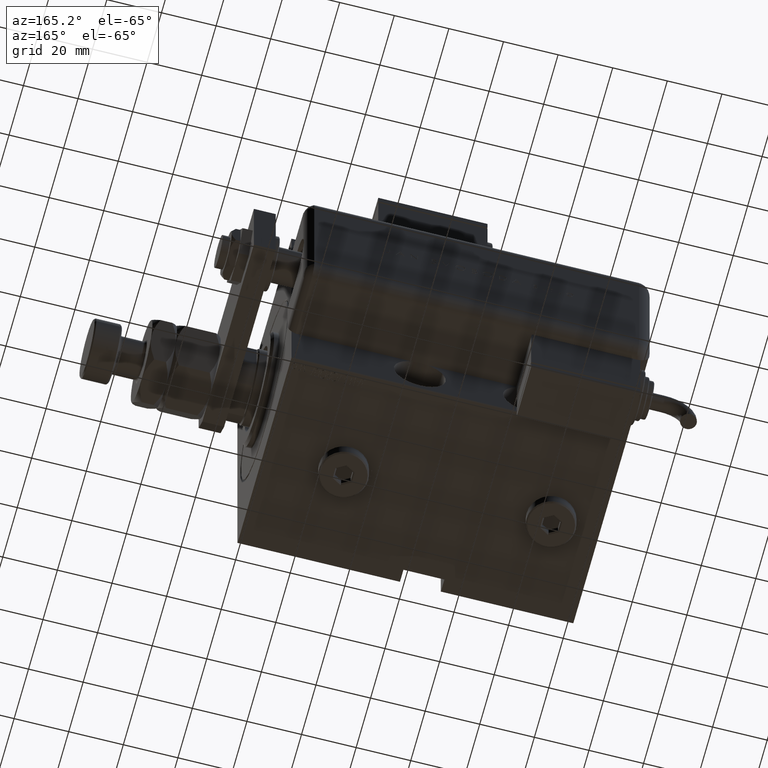
[diagram: clean part render]
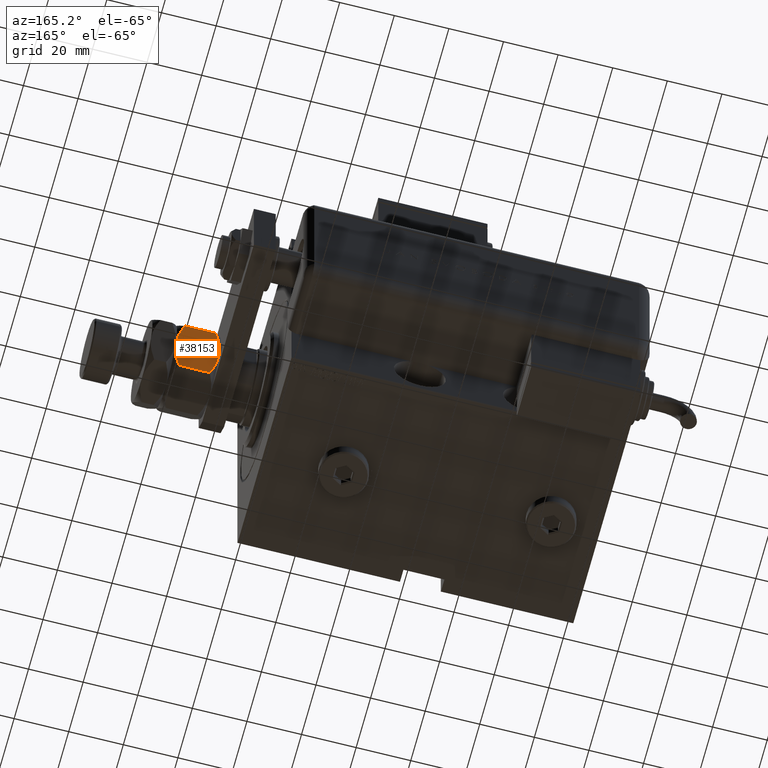
[diagram: same view with one face highlighted and labeled with its STEP entity id]
A machine part, auxiliary view. The second image highlights one B-rep face of the part: STEP entity #38153.
In plain terms, the highlighted planar face has unit normal (0, -0.866, 0.5).
Its self-contained STEP definition (entity closure, byte-faithful):
#701 = CARTESIAN_POINT ( 'NONE',  ( 6.195449321423087241, 13.74356374221446764, 16.00000000000000355 ) ) ;
#1381 = CARTESIAN_POINT ( 'NONE',  ( 7.499999999999997335, 12.99038105676658184, 0.000000000000000000 ) ) ;
#5203 = CARTESIAN_POINT ( 'NONE',  ( 7.500000000000000000, 12.99038105676657651, 16.00000000000000000 ) ) ;
#6249 = EDGE_LOOP ( 'NONE', ( #17823, #48552, #22976, #17435, #24705, #33646 ) ) ;
#6376 = CARTESIAN_POINT ( 'NONE',  ( 12.61607045183964715, 10.03661640420386902, 1.060479031370879843 ) ) ;
#9565 = CARTESIAN_POINT ( 'NONE',  ( 6.176419610670692784, 13.75455055083996214, 0.05953537397470201609 ) ) ;
#9594 = PLANE ( 'NONE',  #27626 ) ;
#10397 = VERTEX_POINT ( 'NONE', #45038 ) ;
#10486 = CARTESIAN_POINT ( 'NONE',  ( 7.621669386706803087E-17, 17.32050807568877104, 2.320508075688761718 ) ) ;
#10692 = CARTESIAN_POINT ( 'NONE',  ( 7.500000000000000000, 12.99038105676657651, 16.00000000000000000 ) ) ;
#11385 = CARTESIAN_POINT ( 'NONE',  ( 8.804550678576910983, 12.23719837131869426, -5.031375706690542042E-16 ) ) ;
#11648 = B_SPLINE_CURVE_WITH_KNOTS ( 'NONE', 3,
 ( #10692, #701, #15091, #25401, #49127, #29161 ),
 .UNSPECIFIED., .F., .F.,
 ( 4, 2, 4 ),
 ( 0.008977392552884448998, 0.01343452311421656706, 0.01789165367554868338 ),
 .UNSPECIFIED. ) ;
#14044 = LINE ( 'NONE', #51548, #56769 ) ;
#14430 = VERTEX_POINT ( 'NONE', #20330 ) ;
#14468 = B_SPLINE_CURVE_WITH_KNOTS ( 'NONE', 3,
 ( #10486, #48619, #29885, #52387, #28651, #9565, #52693, #34262 ),
 .UNSPECIFIED., .F., .F.,
 ( 4, 2, 2, 4 ),
 ( 2.544309033652185071E-07, 0.004488823491893902638, 0.006733108022389172782, 0.008977392552884443794 ),
 .UNSPECIFIED. ) ;
#14646 = CARTESIAN_POINT ( 'NONE',  ( 3.803331551779305683E-16, 17.32050807568877104, 13.67949192431124317 ) ) ;
#15091 = CARTESIAN_POINT ( 'NONE',  ( 4.913081180497409939, 14.48393933357810504, 15.76967007806078946 ) ) ;
#15122 = VERTEX_POINT ( 'NONE', #41224 ) ;
#16094 = CARTESIAN_POINT ( 'NONE',  ( 15.00000000000000000, 8.660254037844389075, 2.320508075688765715 ) ) ;
#17435 = ORIENTED_EDGE ( 'NONE', *, *, #57593, .F. ) ;
#17823 = ORIENTED_EDGE ( 'NONE', *, *, #49196, .F. ) ;
#18403 = EDGE_CURVE ( 'NONE', #15122, #27415, #29862, .T. ) ;
#19300 = FACE_OUTER_BOUND ( 'NONE', #6249, .T. ) ;
#20330 = CARTESIAN_POINT ( 'NONE',  ( 7.500000000000000000, 12.99038105676657651, 16.00000000000000000 ) ) ;
#22371 = VERTEX_POINT ( 'NONE', #14646 ) ;
#22976 = ORIENTED_EDGE ( 'NONE', *, *, #43512, .F. ) ;
#23068 = CARTESIAN_POINT ( 'NONE',  ( 8.823580389329306328, 12.22621156269319798, 15.94046462602529957 ) ) ;
#23738 = DIRECTION ( 'NONE',  ( -0.000000000000000000, -0.000000000000000000, -1.000000000000000000 ) ) ;
#24705 = ORIENTED_EDGE ( 'NONE', *, *, #18403, .T. ) ;
#25401 = CARTESIAN_POINT ( 'NONE',  ( 2.383929548160350631, 15.94414570932928576, 14.93952096862913059 ) ) ;
#26464 = B_SPLINE_CURVE_WITH_KNOTS ( 'NONE', 3,
 ( #33678, #51489, #37756, #57408, #33060, #23068, #28978, #5203 ),
 .UNSPECIFIED., .F., .F.,
 ( 4, 2, 2, 4 ),
 ( 2.544309033641602453E-07, 0.004488823491893906975, 0.006733108022389177119, 0.008977392552884448998 ),
 .UNSPECIFIED. ) ;
#27415 = VERTEX_POINT ( 'NONE', #56465 ) ;
#27626 = AXIS2_PLACEMENT_3D ( 'NONE', #37439, #38361, #56801 ) ;
#28651 = CARTESIAN_POINT ( 'NONE',  ( 4.881674457977373649, 14.50207201327941320, 0.2838026619462936107 ) ) ;
#28978 = CARTESIAN_POINT ( 'NONE',  ( 8.156876182308252510, 12.61113341608665728, 16.00000000000000355 ) ) ;
#29161 = CARTESIAN_POINT ( 'NONE',  ( 3.803331551779305683E-16, 17.32050807568877104, 13.67949192431124317 ) ) ;
#29862 = LINE ( 'NONE', #48898, #30348 ) ;
#29885 = CARTESIAN_POINT ( 'NONE',  ( 2.378834511187503331, 15.94708733029709080, 1.064486067744004671 ) ) ;
#30348 = VECTOR ( 'NONE', #58902, 1000.000000000000000 ) ;
#30473 = CARTESIAN_POINT ( 'NONE',  ( 10.08691881950258740, 11.49682277995505331, 0.2303299219392160591 ) ) ;
#33060 = CARTESIAN_POINT ( 'NONE',  ( 10.11832554202262457, 11.47869010025374514, 15.71619733805371411 ) ) ;
#33646 = ORIENTED_EDGE ( 'NONE', *, *, #39554, .F. ) ;
#33678 = CARTESIAN_POINT ( 'NONE',  ( 15.00000000000000000, 8.660254037844389075, 13.67949192431123784 ) ) ;
#34262 = CARTESIAN_POINT ( 'NONE',  ( 7.499999999999997335, 12.99038105676658184, 0.000000000000000000 ) ) ;
#34509 = CARTESIAN_POINT ( 'NONE',  ( 7.621669386706803087E-17, 17.32050807568877104, 2.320508075688761718 ) ) ;
#37439 = CARTESIAN_POINT ( 'NONE',  ( 15.00000000000000000, 8.660254037844389075, 16.00000000000000000 ) ) ;
#37756 = CARTESIAN_POINT ( 'NONE',  ( 12.62116548881249756, 10.03367478323606221, 14.93551393225599710 ) ) ;
#38153 = ADVANCED_FACE ( 'NONE', ( #19300 ), #9594, .F. ) ;
#38361 = DIRECTION ( 'NONE',  ( -0.4999999999999997780, -0.8660254037844388186, 0.000000000000000000 ) ) ;
#39554 = EDGE_CURVE ( 'NONE', #10397, #27415, #45550, .T. ) ;
#41224 = CARTESIAN_POINT ( 'NONE',  ( 15.00000000000000000, 8.660254037844389075, 13.67949192431123784 ) ) ;
#43512 = EDGE_CURVE ( 'NONE', #14430, #22371, #11648, .T. ) ;
#45038 = CARTESIAN_POINT ( 'NONE',  ( 7.499999999999997335, 12.99038105676658184, 0.000000000000000000 ) ) ;
#45550 = B_SPLINE_CURVE_WITH_KNOTS ( 'NONE', 3,
 ( #1381, #11385, #30473, #6376, #58889, #16094 ),
 .UNSPECIFIED., .F., .F.,
 ( 4, 2, 4 ),
 ( 0.008977392552884443794, 0.01343452311421656532, 0.01789165367554868685 ),
 .UNSPECIFIED. ) ;
#47144 = EDGE_CURVE ( 'NONE', #22371, #52925, #14044, .T. ) ;
#48552 = ORIENTED_EDGE ( 'NONE', *, *, #47144, .F. ) ;
#48619 = CARTESIAN_POINT ( 'NONE',  ( 1.176108425306640504, 16.64148155974179843, 1.641481559741787111 ) ) ;
#48898 = CARTESIAN_POINT ( 'NONE',  ( 15.00000000000000000, 8.660254037844389075, 16.00000000000000000 ) ) ;
#49127 = CARTESIAN_POINT ( 'NONE',  ( 1.174746544192161846, 16.64226784216984356, 14.35773215783022572 ) ) ;
#49196 = EDGE_CURVE ( 'NONE', #52925, #10397, #14468, .T. ) ;
#51489 = CARTESIAN_POINT ( 'NONE',  ( 13.82389157469336283, 9.339280553791368789, 14.35851844025821400 ) ) ;
#51548 = CARTESIAN_POINT ( 'NONE',  ( 0.000000000000000000, 17.32050807568877104, 16.00000000000000000 ) ) ;
#52387 = CARTESIAN_POINT ( 'NONE',  ( 4.247772349543482484, 14.86805556622358893, 0.4475714085130255149 ) ) ;
#52693 = CARTESIAN_POINT ( 'NONE',  ( 6.843123817691747490, 13.36962869744650639, -3.557538378468061917E-16 ) ) ;
#52925 = VERTEX_POINT ( 'NONE', #34509 ) ;
#56465 = CARTESIAN_POINT ( 'NONE',  ( 15.00000000000000000, 8.660254037844389075, 2.320508075688765715 ) ) ;
#56769 = VECTOR ( 'NONE', #23738, 1000.000000000000000 ) ;
#56801 = DIRECTION ( 'NONE',  ( 0.8660254037844387076, -0.4999999999999997224, 0.000000000000000000 ) ) ;
#57408 = CARTESIAN_POINT ( 'NONE',  ( 10.75222765045651663, 11.11270654730956586, 15.55242859148697576 ) ) ;
#57593 = EDGE_CURVE ( 'NONE', #15122, #14430, #26464, .T. ) ;
#58889 = CARTESIAN_POINT ( 'NONE',  ( 13.82525345580783949, 9.338494271363313004, 1.642267842169781833 ) ) ;
#58902 = DIRECTION ( 'NONE',  ( -0.000000000000000000, -0.000000000000000000, -1.000000000000000000 ) ) ;